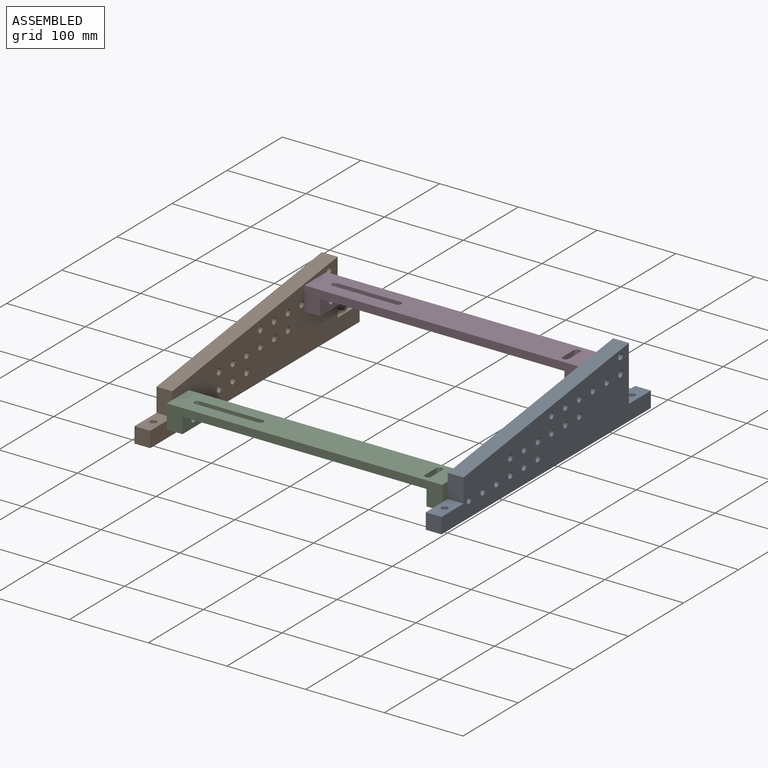
[diagram: assembled view]
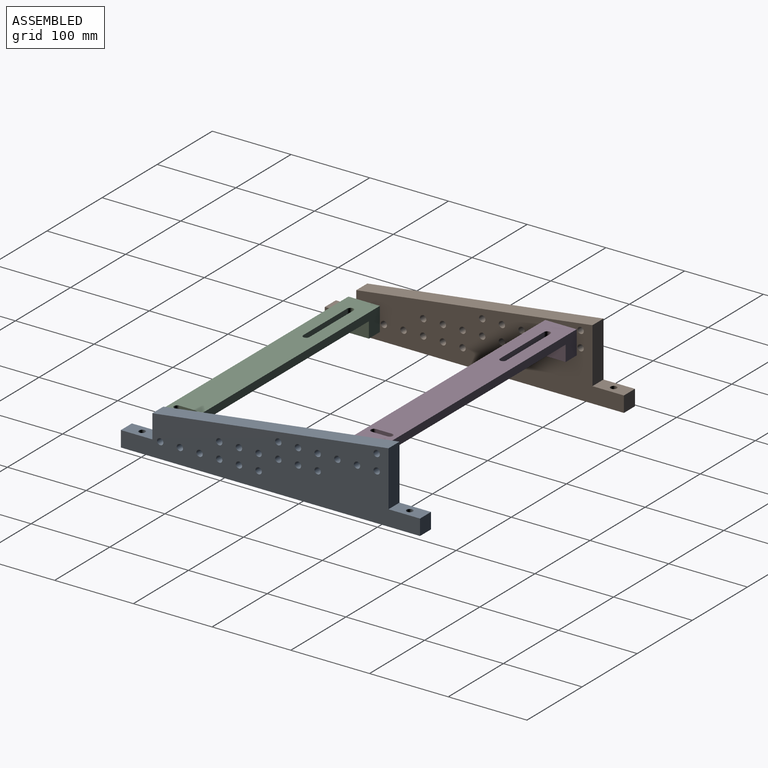
[diagram: assembled view, second angle]
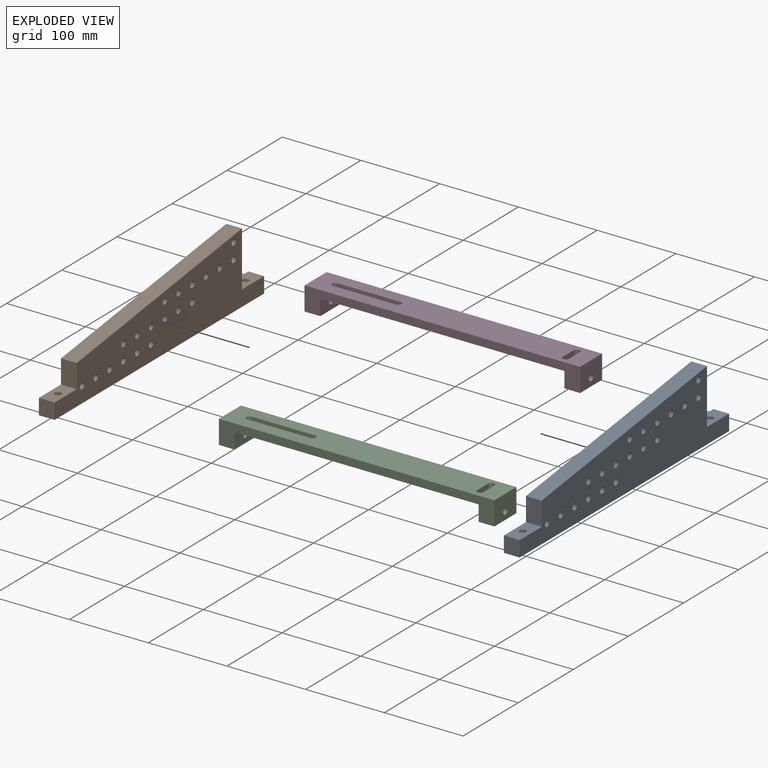
[diagram: exploded view]
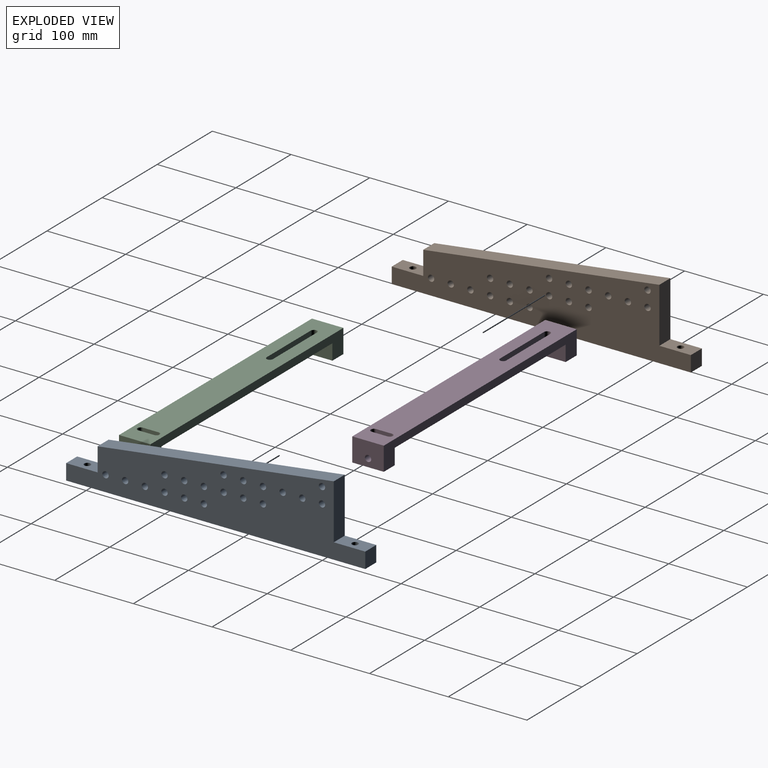
[diagram: exploded view, second angle]
ASSEMBLY  parts=4 mates=3
PART A: 31 faces, bbox 20x380x90 mm
  f0: plane 70x20mm, normal (0,1,0), area 1400mm2, adj f2,f23,f24,f27
  f1: plane 380x20mm, normal (0,0,-1), area 7499.5mm2, adj f23,f24,f26,f28,f29,f30
  f2: plane 300x40mm, normal (0,-0.13,0.99), area 6053.1mm2, adj f0,f22,f23,f24
  f3: cylinder r=4mm len=20mm, axis (-1,0,0), area 502.7mm2, adj f23,f24
  f4: cylinder r=4mm len=20mm, axis (-1,0,0), area 502.7mm2, adj f23,f24
  f5: cylinder r=4mm len=20mm, axis (-1,0,0), area 502.7mm2, adj f23,f24
  f6: cylinder r=4mm len=20mm, axis (-1,0,0), area 502.7mm2, adj f23,f24
  f7: cylinder r=4mm len=20mm, axis (-1,0,0), area 502.7mm2, adj f23,f24
  f8: cylinder r=4mm len=20mm, axis (-1,0,0), area 502.7mm2, adj f23,f24
  f9: cylinder r=4mm len=20mm, axis (-1,0,0), area 502.7mm2, adj f23,f24
  f10: cylinder r=4mm len=20mm, axis (-1,0,0), area 502.7mm2, adj f23,f24
  f11: cylinder r=4mm len=20mm, axis (-1,0,0), area 502.7mm2, adj f23,f24
  f12: cylinder r=4mm len=20mm, axis (-1,0,0), area 502.7mm2, adj f23,f24
  f13: cylinder r=4mm len=20mm, axis (-1,0,0), area 502.7mm2, adj f23,f24
  f14: cylinder r=4mm len=20mm, axis (-1,0,0), area 502.7mm2, adj f23,f24
  f15: cylinder r=4mm len=20mm, axis (-1,0,0), area 502.7mm2, adj f23,f24
  f16: cylinder r=4mm len=20mm, axis (-1,0,0), area 502.7mm2, adj f23,f24
  f17: cylinder r=4mm len=20mm, axis (-1,0,0), area 502.7mm2, adj f23,f24
  f18: cylinder r=4mm len=20mm, axis (-1,0,0), area 502.7mm2, adj f23,f24
  f19: cylinder r=4mm len=20mm, axis (-1,0,0), area 502.7mm2, adj f23,f24
  f20: cylinder r=4mm len=20mm, axis (-1,0,0), area 502.7mm2, adj f23,f24
  f21: cylinder r=4mm len=20mm, axis (-1,0,0), area 502.7mm2, adj f23,f24
  f22: plane 30x20mm, normal (0,-1,0), area 600mm2, adj f2,f23,f24,f25
  f23: plane 380x90mm, normal (1,0,0), area 21645mm2, adj f0,f1,f2,f3,f4,f5,f6,f7
  f24: plane 380x90mm, normal (-1,0,0), area 21645mm2, adj f0,f1,f2,f3,f4,f5,f6,f7
  f25: plane 40x20mm, normal (0,0,1), area 749.7mm2, adj f22,f23,f24,f26,f30
  f26: plane 20x20mm, normal (0,-1,0), area 400mm2, adj f1,f23,f24,f25
  f27: plane 40x20mm, normal (0,0,1), area 749.7mm2, adj f0,f23,f24,f28,f29
  f28: plane 20x20mm, normal (0,1,0), area 400mm2, adj f1,f23,f24,f27
  f29: cylinder r=4mm len=20mm, axis (0,0,1), area 502.7mm2, adj f1,f27
  f30: cylinder r=4mm len=20mm, axis (0,0,1), area 502.7mm2, adj f1,f25
PART B: same geometry as A
PART C: 20 faces, bbox 350x40x30 mm
  f0: plane 350x40mm, normal (0,0,1), area 13099.5mm2, adj f2,f7,f8,f9,f12,f13,f14,f15
  f1: plane 310x40mm, normal (0,0,-1), area 11499.5mm2, adj f4,f5,f8,f9,f12,f13,f14,f15
  f2: plane 40x30mm, normal (-1,0,0), area 1149.7mm2, adj f0,f3,f8,f9,f11
  f3: plane 40x20mm, normal (0,0,-1), area 800mm2, adj f2,f4,f8,f9
  f4: plane 40x20mm, normal (1,0,0), area 749.7mm2, adj f1,f3,f8,f9,f11
  f5: plane 40x20mm, normal (-1,0,0), area 749.7mm2, adj f1,f6,f8,f9,f10
  f6: plane 40x20mm, normal (0,0,-1), area 800mm2, adj f5,f7,f8,f9
  f7: plane 40x30mm, normal (1,0,0), area 1149.7mm2, adj f0,f6,f8,f9,f10
  f8: plane 350x30mm, normal (0,-1,0), area 4300mm2, adj f0,f1,f2,f3,f4,f5,f6,f7
  f9: plane 350x30mm, normal (0,1,0), area 4300mm2, adj f0,f1,f2,f3,f4,f5,f6,f7
  f10: cylinder r=4mm len=20mm, axis (-1,0,0), area 502.7mm2, adj f5,f7
  f11: cylinder r=4mm len=20mm, axis (-1,0,0), area 502.7mm2, adj f2,f4
  f12: plane 20x10mm, normal (-1,0,0), area 200mm2, adj f0,f1,f13,f15
  f13: cylinder r=4mm len=10mm, axis (0,0,1), area 125.7mm2, adj f0,f1,f12,f14
  f14: plane 20x10mm, normal (1,0,0), area 200mm2, adj f0,f1,f13,f15
  f15: cylinder r=4mm len=10mm, axis (0,0,1), area 125.7mm2, adj f0,f1,f12,f14
  f16: plane 80x10mm, normal (0,-1,0), area 800mm2, adj f0,f1,f17,f19
  f17: cylinder r=4mm len=10mm, axis (0,0,1), area 125.7mm2, adj f0,f1,f16,f18
  f18: plane 80x10mm, normal (0,1,0), area 800mm2, adj f0,f1,f17,f19
  f19: cylinder r=4mm len=10mm, axis (0,0,1), area 125.7mm2, adj f0,f1,f16,f18
PART D: same geometry as C
PLACE A t=(97.13,69.07,-80.18)mm
PLACE B t=(-272.87,69.07,-80.18)mm
PLACE C t=(-87.87,-50.93,-70.18)mm
PLACE D t=(-87.87,199.07,-30.18)mm
MATE fastened D.f10 <-> A.f19  axis (1,0,0) through (87.13,179.07,-20.18)mm
MATE fastened C.f10 <-> B.f3  axis (-1,0,0) through (-262.87,-70.93,-60.18)mm
MATE fastened D.f10 <-> B.f19  axis (-1,0,0) through (-262.87,179.07,-20.18)mm
